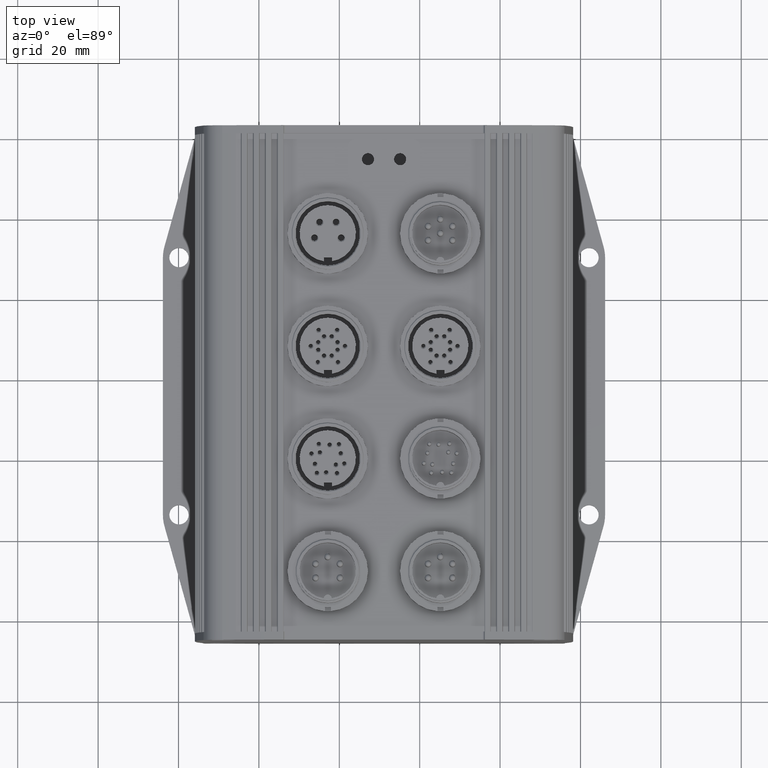
[diagram: clean part render]
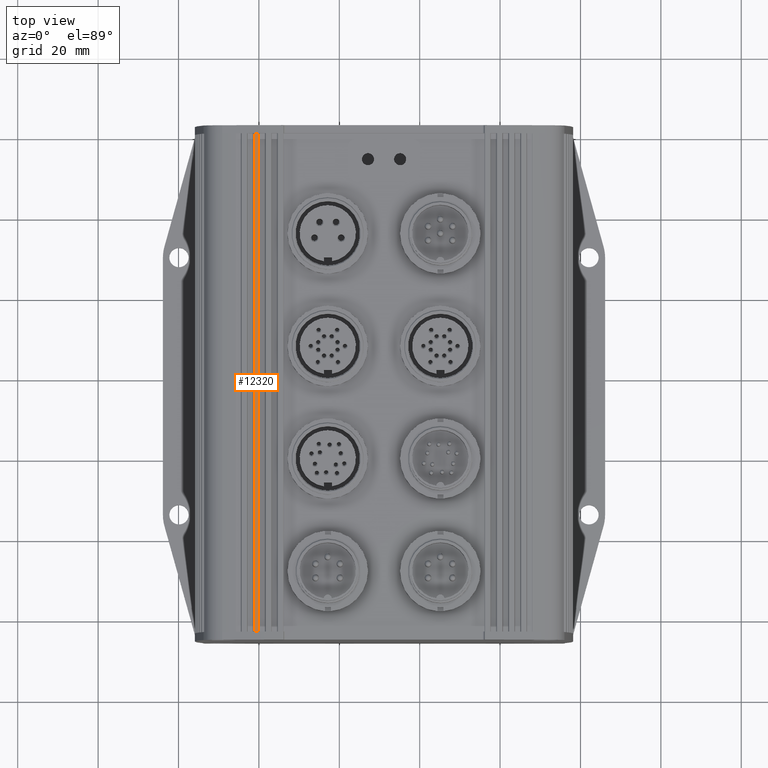
[diagram: same view with one face highlighted and labeled with its STEP entity id]
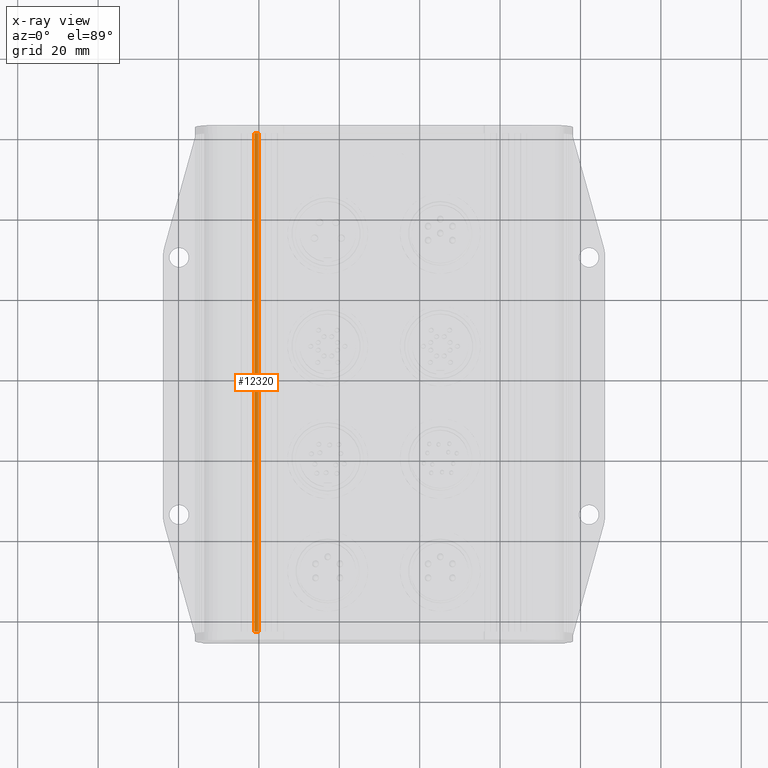
[diagram: x-ray of the same camera — body ghosted, the highlighted face saturated]
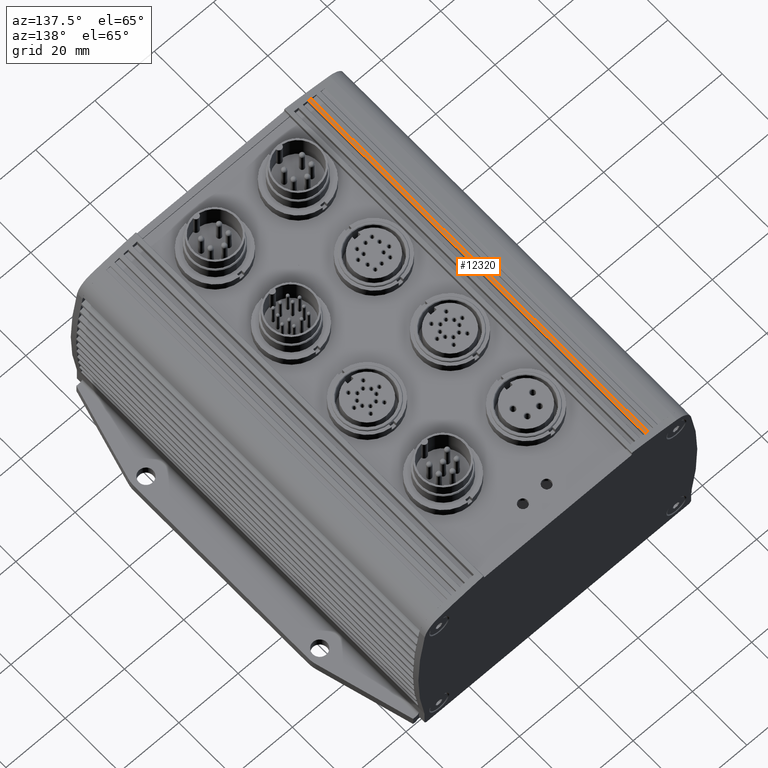
[diagram: same view with one face highlighted and labeled with its STEP entity id]
A machine part, top view. The second image highlights one B-rep face of the part: STEP entity #12320.
The next image is the same camera in x-ray: the body ghosted, the highlighted face saturated — about 0% of this face is hidden behind the body in this view.
A second angle (auxiliary view) of the same face is appended — the face is thin or edge-on in the first view.
In plain terms, the highlighted cylindrical surface (partial cylindrical patch) has radius 200 mm, axis along (0, -1, 0).
Its self-contained STEP definition (entity closure, byte-faithful):
#3798=CARTESIAN_POINT('',(-32.290362953692096,75.0,29.425652888212028));
#3799=VERTEX_POINT('',#3798);
#3807=CARTESIAN_POINT('',(-31.289111389236528,75.0,29.586850361749299));
#3808=VERTEX_POINT('',#3807);
#3809=CARTESIAN_POINT('',(0.0,75.0,-167.950466387446080));
#3810=DIRECTION('',(0.0,1.0,0.0));
#3811=DIRECTION('',(1.0,0.0,0.0));
#3812=AXIS2_PLACEMENT_3D('',#3809,#3810,#3811);
#3813=CIRCLE('',#3812,200.0);
#3814=EDGE_CURVE('',#3799,#3808,#3813,.T.);
#7277=CARTESIAN_POINT('',(-31.289111389236528,-49.0,29.586850361749299));
#7278=VERTEX_POINT('',#7277);
#7286=CARTESIAN_POINT('',(-32.290362953692096,-49.0,29.425652888212028));
#7287=VERTEX_POINT('',#7286);
#7288=CARTESIAN_POINT('',(0.0,-49.0,-167.950466387446080));
#7289=DIRECTION('',(0.0,1.0,0.0));
#7290=DIRECTION('',(1.0,0.0,0.0));
#7291=AXIS2_PLACEMENT_3D('',#7288,#7289,#7290);
#7292=CIRCLE('',#7291,200.0);
#7293=EDGE_CURVE('',#7287,#7278,#7292,.T.);
#12288=CARTESIAN_POINT('',(-31.289111389236528,75.0,29.586850361749299));
#12289=DIRECTION('',(0.0,-1.0,0.0));
#12290=VECTOR('',#12289,124.0);
#12291=LINE('',#12288,#12290);
#12292=EDGE_CURVE('',#3808,#7278,#12291,.T.);
#12304=CARTESIAN_POINT('',(0.0,75.0,-167.950466387446080));
#12305=DIRECTION('',(0.0,-1.0,0.0));
#12306=DIRECTION('',(1.0,0.0,0.0));
#12307=AXIS2_PLACEMENT_3D('',#12304,#12305,#12306);
#12308=CYLINDRICAL_SURFACE('',#12307,200.0);
#12309=ORIENTED_EDGE('',*,*,#12292,.F.);
#12310=ORIENTED_EDGE('',*,*,#3814,.F.);
#12311=CARTESIAN_POINT('',(-32.290362953692096,-49.0,29.425652888212028));
#12312=DIRECTION('',(0.0,1.0,0.0));
#12313=VECTOR('',#12312,124.0);
#12314=LINE('',#12311,#12313);
#12315=EDGE_CURVE('',#7287,#3799,#12314,.T.);
#12316=ORIENTED_EDGE('',*,*,#12315,.F.);
#12317=ORIENTED_EDGE('',*,*,#7293,.T.);
#12318=EDGE_LOOP('',(#12309,#12310,#12316,#12317));
#12319=FACE_OUTER_BOUND('',#12318,.T.);
#12320=ADVANCED_FACE('',(#12319),#12308,.T.);